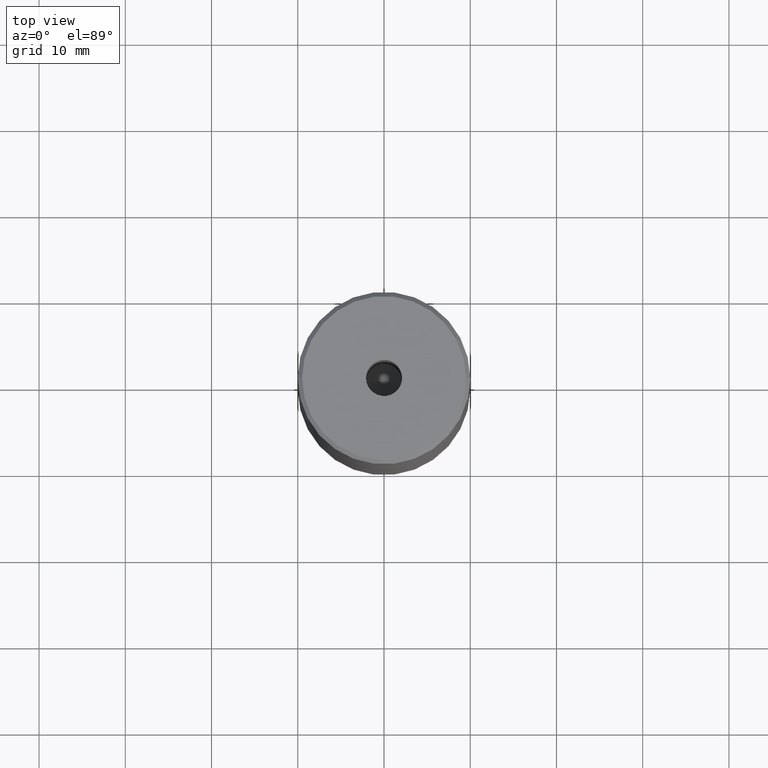
[diagram: clean part render]
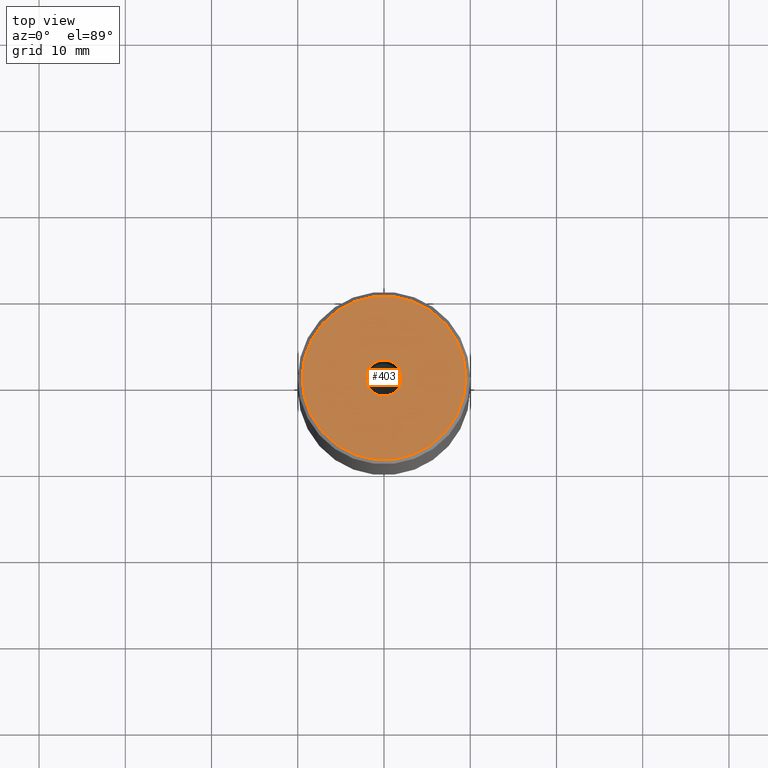
[diagram: same view with one face highlighted and labeled with its STEP entity id]
A machine part, top view. The second image highlights one B-rep face of the part: STEP entity #403.
In plain terms, the highlighted planar face has unit normal (0, -0, 1).
Its self-contained STEP definition (entity closure, byte-faithful):
#33 = EDGE_CURVE ( 'NONE', #274, #35, #428, .T. ) ;
#35 = VERTEX_POINT ( 'NONE', #295 ) ;
#80 = CARTESIAN_POINT ( 'NONE',  ( 0.000000000000000000, 0.000000000000000000, -1.990051048614449116E-16 ) ) ;
#97 = CARTESIAN_POINT ( 'NONE',  ( 0.000000000000000000, 0.000000000000000000, 0.000000000000000000 ) ) ;
#107 = DIRECTION ( 'NONE',  ( 1.000000000000000000, 0.000000000000000000, 0.000000000000000000 ) ) ;
#166 = PLANE ( 'NONE',  #582 ) ;
#175 = FACE_BOUND ( 'NONE', #411, .T. ) ;
#183 = CARTESIAN_POINT ( 'NONE',  ( 2.099999999999998757, 0.000000000000000000, -1.990051048614449116E-16 ) ) ;
#184 = ORIENTED_EDGE ( 'NONE', *, *, #185, .T. ) ;
#185 = EDGE_CURVE ( 'NONE', #429, #409, #554, .T. ) ;
#193 = ORIENTED_EDGE ( 'NONE', *, *, #302, .T. ) ;
#232 = AXIS2_PLACEMENT_3D ( 'NONE', #361, #496, #107 ) ;
#235 = DIRECTION ( 'NONE',  ( -0.000000000000000000, -0.000000000000000000, 1.000000000000000000 ) ) ;
#255 = CARTESIAN_POINT ( 'NONE',  ( -9.500000000000015987, 0.000000000000000000, 0.000000000000000000 ) ) ;
#258 = FACE_OUTER_BOUND ( 'NONE', #286, .T. ) ;
#263 = AXIS2_PLACEMENT_3D ( 'NONE', #509, #305, #355 ) ;
#274 = VERTEX_POINT ( 'NONE', #183 ) ;
#286 = EDGE_LOOP ( 'NONE', ( #193, #184 ) ) ;
#295 = CARTESIAN_POINT ( 'NONE',  ( -2.099999999999998757, 2.571758278209440478E-16, -1.990051048614449116E-16 ) ) ;
#302 = EDGE_CURVE ( 'NONE', #409, #429, #413, .T. ) ;
#303 = DIRECTION ( 'NONE',  ( 0.000000000000000000, -0.000000000000000000, 1.000000000000000000 ) ) ;
#305 = DIRECTION ( 'NONE',  ( -0.000000000000000000, -0.000000000000000000, 1.000000000000000000 ) ) ;
#306 = AXIS2_PLACEMENT_3D ( 'NONE', #527, #235, #534 ) ;
#314 = EDGE_CURVE ( 'NONE', #35, #274, #532, .T. ) ;
#342 = DIRECTION ( 'NONE',  ( 1.000000000000000000, 0.000000000000000000, 0.000000000000000000 ) ) ;
#355 = DIRECTION ( 'NONE',  ( 1.000000000000000000, 0.000000000000000000, 0.000000000000000000 ) ) ;
#361 = CARTESIAN_POINT ( 'NONE',  ( 0.000000000000000000, 0.000000000000000000, 0.000000000000000000 ) ) ;
#388 = DIRECTION ( 'NONE',  ( -0.000000000000000000, -0.000000000000000000, 1.000000000000000000 ) ) ;
#391 = ORIENTED_EDGE ( 'NONE', *, *, #314, .F. ) ;
#403 = ADVANCED_FACE ( 'NONE', ( #175, #258 ), #166, .T. ) ;
#409 = VERTEX_POINT ( 'NONE', #255 ) ;
#411 = EDGE_LOOP ( 'NONE', ( #562, #391 ) ) ;
#413 = CIRCLE ( 'NONE', #232, 9.500000000000015987 ) ;
#428 = CIRCLE ( 'NONE', #500, 2.099999999999998757 ) ;
#429 = VERTEX_POINT ( 'NONE', #445 ) ;
#445 = CARTESIAN_POINT ( 'NONE',  ( 9.500000000000015987, 1.194030629168670258E-15, 0.000000000000000000 ) ) ;
#485 = DIRECTION ( 'NONE',  ( 1.000000000000000000, 0.000000000000000000, 0.000000000000000000 ) ) ;
#496 = DIRECTION ( 'NONE',  ( -0.000000000000000000, -0.000000000000000000, 1.000000000000000000 ) ) ;
#500 = AXIS2_PLACEMENT_3D ( 'NONE', #80, #388, #342 ) ;
#509 = CARTESIAN_POINT ( 'NONE',  ( 0.000000000000000000, 0.000000000000000000, -1.990051048614449116E-16 ) ) ;
#527 = CARTESIAN_POINT ( 'NONE',  ( 0.000000000000000000, 0.000000000000000000, 0.000000000000000000 ) ) ;
#532 = CIRCLE ( 'NONE', #263, 2.099999999999998757 ) ;
#534 = DIRECTION ( 'NONE',  ( 1.000000000000000000, 0.000000000000000000, 0.000000000000000000 ) ) ;
#554 = CIRCLE ( 'NONE', #306, 9.500000000000015987 ) ;
#562 = ORIENTED_EDGE ( 'NONE', *, *, #33, .F. ) ;
#582 = AXIS2_PLACEMENT_3D ( 'NONE', #97, #303, #485 ) ;